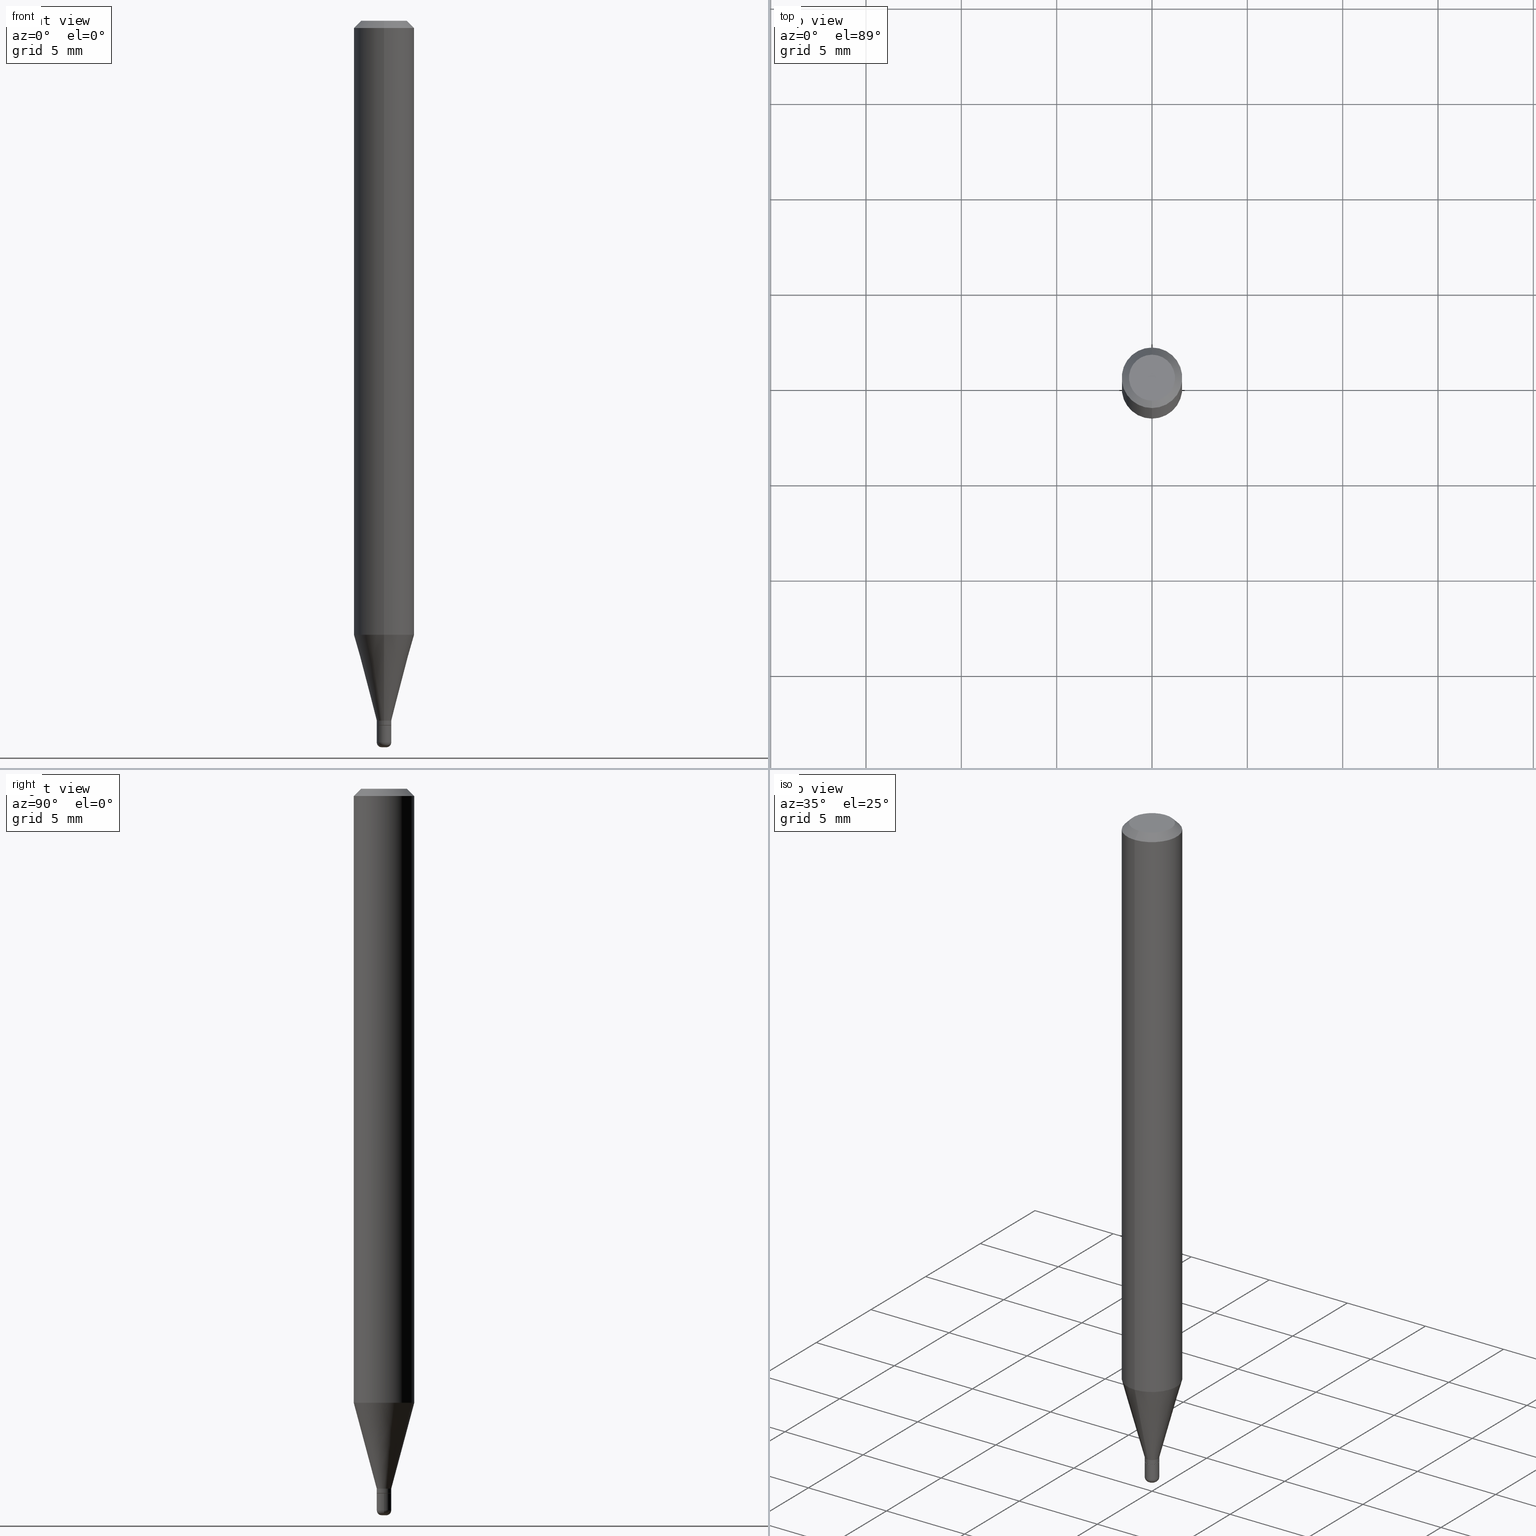
[diagram: canonical four-view strip — front | top / right | iso, engineering-drawing reading convention]
A machine part, canonical four-view strip (front | top / right | iso — engineering-drawing reading convention). The complete STEP part file that produces these views, byte-faithful:
ISO-10303-21;
HEADER;
FILE_DESCRIPTION (( 'STEP AP203' ),
    '1' );
FILE_NAME ('09132.STEP',
    '2024-02-29T22:29:07',
    ( '' ),
    ( '' ),
    'SwSTEP 2.0',
    'SolidWorks 2023',
    '' );
FILE_SCHEMA (( 'CONFIG_CONTROL_DESIGN' ));
ENDSEC;

DATA;
#1 = APPROVAL ( #49, 'UNSPECIFIED' ) ;
#2 = DIRECTION ( 'NONE',  ( -2.445486429573083164E-29, 3.491456101148545241E-15, 1.000000000000000000 ) ) ;
#3 = AXIS2_PLACEMENT_3D ( 'NONE', #233, #388, #23 ) ;
#4 =( NAMED_UNIT ( * ) PLANE_ANGLE_UNIT ( ) SI_UNIT ( $, .RADIAN. ) );
#5 = EDGE_LOOP ( 'NONE', ( #507, #241, #495, #511 ) ) ;
#6 = CARTESIAN_POINT ( 'NONE',  ( -6.680667879903571432E-45, 9.538085489645678336E-31, 2.731836005759327790E-16 ) ) ;
#7 = ORIENTED_EDGE ( 'NONE', *, *, #211, .T. ) ;
#8 = DATE_AND_TIME ( #304, #10 ) ;
#9 = VECTOR ( 'NONE', #149, 39.37007874015748143 ) ;
#10 = LOCAL_TIME ( 17, 29, 7.000000000000000000, #456 ) ;
#11 = EDGE_LOOP ( 'NONE', ( #56, #232 ) ) ;
#12 = DIRECTION ( 'NONE',  ( -2.445468806185136597E-29, 3.491481338843145583E-15, 1.000000000000000000 ) ) ;
#13 = ORIENTED_EDGE ( 'NONE', *, *, #17, .T. ) ;
#14 = PERSON_AND_ORGANIZATION_ROLE ( 'classification_officer' ) ;
#15 = DIRECTION ( 'NONE',  ( -1.807323732225323828E-15, -0.2588190451025172978, 0.9659258262890690894 ) ) ;
#16 = CC_DESIGN_PERSON_AND_ORGANIZATION_ASSIGNMENT ( #177, #483, ( #108 ) ) ;
#17 = EDGE_CURVE ( 'NONE', #147, #447, #27, .T. ) ;
#18 = EDGE_LOOP ( 'NONE', ( #504, #229, #51, #150 ) ) ;
#19 = DIRECTION ( 'NONE',  ( -2.445486429573083164E-29, 3.491456101148545241E-15, 1.000000000000000000 ) ) ;
#20 = ORIENTED_EDGE ( 'NONE', *, *, #252, .F. ) ;
#21 = CIRCLE ( 'NONE', #243, 0.01500000000000004281 ) ;
#22 = PLANE ( 'NONE',  #287 ) ;
#23 = DIRECTION ( 'NONE',  ( -6.982962677686265922E-15, -1.000000000000000000, 4.370956789862821150E-15 ) ) ;
#24 = EDGE_LOOP ( 'NONE', ( #26, #219 ) ) ;
#25 = CARTESIAN_POINT ( 'NONE',  ( 3.558182755028836386E-29, -5.080068627171133732E-15, -1.455000000000000293 ) ) ;
#26 = ORIENTED_EDGE ( 'NONE', *, *, #510, .T. ) ;
#27 = CIRCLE ( 'NONE', #487, 0.01450000000000004410 ) ;
#28 = CIRCLE ( 'NONE', #206, 0.06250000000000000000 ) ;
#29 = APPROVAL ( #136, 'UNSPECIFIED' ) ;
#30 = LINE ( 'NONE', #397, #500 ) ;
#31 = ORIENTED_EDGE ( 'NONE', *, *, #291, .T. ) ;
#32 = CARTESIAN_POINT ( 'NONE',  ( -4.287811248607203282E-16, -0.06250000000000005551, -0.01499999999999948597 ) ) ;
#33 = EDGE_CURVE ( 'NONE', #345, #357, #115, .T. ) ;
#34 = CARTESIAN_POINT ( 'NONE',  ( 3.840629472727447874E-16, 0.04750000000000000749, 1.073394357713768884E-16 ) ) ;
#35 = DIRECTION ( 'NONE',  ( -6.982962677686265922E-15, -1.000000000000000000, 3.483106191921935554E-15 ) ) ;
#36 = DIRECTION ( 'NONE',  ( -2.445468806185136597E-29, 3.491481338843145583E-15, 1.000000000000000000 ) ) ;
#37 = VECTOR ( 'NONE', #201, 39.37007874015748143 ) ;
#38 = AXIS2_PLACEMENT_3D ( 'NONE', #465, #113, #509 ) ;
#39 = DIRECTION ( 'NONE',  ( -2.445486429573083164E-29, 3.491456101148545241E-15, 1.000000000000000000 ) ) ;
#40 = EDGE_CURVE ( 'NONE', #395, #95, #434, .T. ) ;
#41 = CARTESIAN_POINT ( 'NONE',  ( 0.000000000000000000, 0.000000000000000000, 0.000000000000000000 ) ) ;
#42 = FACE_OUTER_BOUND ( 'NONE', #322, .T. ) ;
#43 = DIRECTION ( 'NONE',  ( -2.445486429573083164E-29, 3.491456101148545241E-15, 1.000000000000000000 ) ) ;
#44 = CARTESIAN_POINT ( 'NONE',  ( 3.668229644359552001E-31, -5.237184151722713929E-17, -0.01499999999999970281 ) ) ;
#45 = EDGE_CURVE ( 'NONE', #340, #357, #302, .T. ) ;
#46 = TOROIDAL_SURFACE ( 'NONE', #346, 0.005000000000000000104, 0.01000000000000008521 ) ;
#47 = VERTEX_POINT ( 'NONE', #196 ) ;
#48 = VERTEX_POINT ( 'NONE', #437 ) ;
#49 = APPROVAL_STATUS ( 'not_yet_approved' ) ;
#50 = EDGE_CURVE ( 'NONE', #345, #372, #77, .T. ) ;
#51 = ORIENTED_EDGE ( 'NONE', *, *, #510, .F. ) ;
#52 = APPLICATION_PROTOCOL_DEFINITION ( 'international standard', 'config_control_design', 1994, #137 ) ;
#53 = ADVANCED_FACE ( 'NONE', ( #476 ), #417, .T. ) ;
#54 = AXIS2_PLACEMENT_3D ( 'NONE', #464, #279, #428 ) ;
#55 = VECTOR ( 'NONE', #512, 39.37007874015748143 ) ;
#56 = ORIENTED_EDGE ( 'NONE', *, *, #94, .F. ) ;
#57 = EDGE_CURVE ( 'NONE', #48, #345, #432, .T. ) ;
#58 = CARTESIAN_POINT ( 'NONE',  ( 3.668229644359552001E-31, -5.237184151722713929E-17, -0.01499999999999970281 ) ) ;
#59 = ORIENTED_EDGE ( 'NONE', *, *, #450, .F. ) ;
#60 = DIRECTION ( 'NONE',  ( 0.000000000000000000, 0.000000000000000000, 1.000000000000000000 ) ) ;
#61 = CARTESIAN_POINT ( 'NONE',  ( 3.643748521215853910E-29, -5.202307194876288105E-15, -1.490000000000000213 ) ) ;
#62 = ORIENTED_EDGE ( 'NONE', *, *, #40, .F. ) ;
#63 = CARTESIAN_POINT ( 'NONE',  ( 3.556960011814050937E-29, -5.078322899120560827E-15, -1.454500000000000570 ) ) ;
#64 = ADVANCED_FACE ( 'NONE', ( #81 ), #249, .T. ) ;
#65 = ORIENTED_EDGE ( 'NONE', *, *, #301, .F. ) ;
#66 = TOROIDAL_SURFACE ( 'NONE', #360, 0.005000000000000000104, 0.01000000000000008521 ) ;
#67 = AXIS2_PLACEMENT_3D ( 'NONE', #70, #350, #468 ) ;
#68 = DIRECTION ( 'NONE',  ( 1.839019923739594004E-15, 0.2588190451025240701, 0.9659258262890673130 ) ) ;
#69 = DIRECTION ( 'NONE',  ( -2.445468806185136597E-29, 3.491481338843145583E-15, 1.000000000000000000 ) ) ;
#70 = CARTESIAN_POINT ( 'NONE',  ( 3.556960011814050937E-29, -5.078322899120560827E-15, -1.454500000000000570 ) ) ;
#71 = ORIENTED_EDGE ( 'NONE', *, *, #170, .F. ) ;
#72 = ADVANCED_FACE ( 'NONE', ( #121 ), #295, .T. ) ;
#73 = DIRECTION ( 'NONE',  ( 2.438088387897960049E-29, -3.491481338843145188E-15, -1.000000000000000000 ) ) ;
#74 = CARTESIAN_POINT ( 'NONE',  ( -1.012529588264155786E-16, -0.01450000000000512337, -1.455000000000000293 ) ) ;
#75 = DIRECTION ( 'NONE',  ( -6.982962677686266711E-15, -1.000000000000000000, 3.491456101148545241E-15 ) ) ;
#76 = CARTESIAN_POINT ( 'NONE',  ( -0.01500000000000008618, -5.034624861082517202E-15, -1.490000000000000213 ) ) ;
#77 = LINE ( 'NONE', #114, #122 ) ;
#78 = DIRECTION ( 'NONE',  ( 1.000000000000000000, -6.982962677686273021E-15, 0.000000000000000000 ) ) ;
#79 = AXIS2_PLACEMENT_3D ( 'NONE', #442, #85, #293 ) ;
#80 = ORIENTED_EDGE ( 'NONE', *, *, #454, .T. ) ;
#81 = FACE_OUTER_BOUND ( 'NONE', #272, .T. ) ;
#82 = EDGE_CURVE ( 'NONE', #334, #466, #353, .T. ) ;
#83 = LENGTH_MEASURE_WITH_UNIT ( LENGTH_MEASURE( 0.02539999999999999897 ), #472 );
#84 = CC_DESIGN_DATE_AND_TIME_ASSIGNMENT ( #185, #258, ( #470 ) ) ;
#85 = DIRECTION ( 'NONE',  ( -2.445468806185136597E-29, 3.491481338843145583E-15, 1.000000000000000000 ) ) ;
#86 = CALENDAR_DATE ( 2024, 29, 2 ) ;
#87 = FACE_OUTER_BOUND ( 'NONE', #516, .T. ) ;
#88 = VECTOR ( 'NONE', #352, 39.37007874015748143 ) ;
#89 = ORIENTED_EDGE ( 'NONE', *, *, #57, .T. ) ;
#90 = CALENDAR_DATE ( 2024, 29, 2 ) ;
#91 = CARTESIAN_POINT ( 'NONE',  ( -1.047444401652589802E-16, -0.01500000000000509086, -1.445000000000000284 ) ) ;
#92 = DIRECTION ( 'NONE',  ( -6.982962677686265922E-15, -1.000000000000000000, 3.491456101148545241E-15 ) ) ;
#93 = EDGE_CURVE ( 'NONE', #447, #423, #120, .T. ) ;
#94 = EDGE_CURVE ( 'NONE', #48, #340, #186, .T. ) ;
#95 = VERTEX_POINT ( 'NONE', #34 ) ;
#96 = PERSON_AND_ORGANIZATION ( #280, #305 ) ;
#97 = CARTESIAN_POINT ( 'NONE',  ( 1.048050535246506404E-16, 0.01449999999999496310, -1.455000000000000293 ) ) ;
#98 = COORDINATED_UNIVERSAL_TIME_OFFSET ( 5, 0, .BEHIND. ) ;
#99 = DIRECTION ( 'NONE',  ( 1.000000000000000000, -6.982962677686266711E-15, 4.876176775795935793E-29 ) ) ;
#100 = ADVANCED_FACE ( 'NONE', ( #42 ), #318, .T. ) ;
#101 = EDGE_LOOP ( 'NONE', ( #7, #31, #161, #257 ) ) ;
#102 = DIRECTION ( 'NONE',  ( -2.445486429573083164E-29, 3.491456101148545241E-15, 1.000000000000000000 ) ) ;
#103 = AXIS2_PLACEMENT_3D ( 'NONE', #298, #471, #205 ) ;
#104 = AXIS2_PLACEMENT_3D ( 'NONE', #494, #12, #183 ) ;
#105 = LINE ( 'NONE', #74, #441 ) ;
#106 = DESIGN_CONTEXT ( 'detailed design', #137, 'design' ) ;
#107 = ORIENTED_EDGE ( 'NONE', *, *, #33, .F. ) ;
#108 = PRODUCT ( '09132', '09132', '', ( #220 ) ) ;
#109 = DIRECTION ( 'NONE',  ( -2.445468806185136597E-29, 3.491481338843145583E-15, 1.000000000000000000 ) ) ;
#110 = ORIENTED_EDGE ( 'NONE', *, *, #247, .T. ) ;
#111 = ADVANCED_FACE ( 'NONE', ( #210 ), #66, .T. ) ;
#112 = ADVANCED_FACE ( 'NONE', ( #326 ), #224, .T. ) ;
#113 = DIRECTION ( 'NONE',  ( -2.445486429573083164E-29, 3.491456101148545241E-15, 1.000000000000000000 ) ) ;
#114 = CARTESIAN_POINT ( 'NONE',  ( 0.01500000000000004281, -1.047444401652942940E-16, 7.314265163693924534E-31 ) ) ;
#115 = CIRCLE ( 'NONE', #143, 0.01500000000000008618 ) ;
#116 = AXIS2_PLACEMENT_3D ( 'NONE', #58, #19, #299 ) ;
#117 = DIRECTION ( 'NONE',  ( -4.937700262166391610E-15, -0.7071067811868091413, 0.7071067811862858932 ) ) ;
#118 = LINE ( 'NONE', #204, #478 ) ;
#119 = EDGE_CURVE ( 'NONE', #357, #259, #118, .T. ) ;
#120 = LINE ( 'NONE', #405, #164 ) ;
#121 = FACE_OUTER_BOUND ( 'NONE', #270, .T. ) ;
#122 = VECTOR ( 'NONE', #330, 39.37007874015748143 ) ;
#123 = CONICAL_SURFACE ( 'NONE', #419, 0.06250000000000000000, 0.7853981633974488341 ) ;
#124 = LOCAL_TIME ( 17, 29, 7.000000000000000000, #98 ) ;
#125 = ADVANCED_FACE ( 'NONE', ( #515 ), #167, .F. ) ;
#126 = DIRECTION ( 'NONE',  ( -6.982962677686265922E-15, -1.000000000000000000, 4.370956789862821150E-15 ) ) ;
#127 = APPROVAL_DATE_TIME ( #178, #315 ) ;
#128 = VERTEX_POINT ( 'NONE', #518 ) ;
#129 = CARTESIAN_POINT ( 'NONE',  ( -1.047444401652589802E-16, -0.01500000000000509086, -1.445000000000000284 ) ) ;
#130 = CIRCLE ( 'NONE', #104, 0.01500000000000008618 ) ;
#131 = EDGE_LOOP ( 'NONE', ( #303, #146, #414, #459 ) ) ;
#132 = PERSON_AND_ORGANIZATION ( #280, #305 ) ;
#133 = EDGE_CURVE ( 'NONE', #95, #461, #169, .T. ) ;
#134 = ORIENTED_EDGE ( 'NONE', *, *, #50, .T. ) ;
#135 = ORIENTED_EDGE ( 'NONE', *, *, #82, .F. ) ;
#136 = APPROVAL_STATUS ( 'not_yet_approved' ) ;
#137 = APPLICATION_CONTEXT ( 'configuration controlled 3d designs of mechanical parts and assemblies' ) ;
#138 = ORIENTED_EDGE ( 'NONE', *, *, #497, .F. ) ;
#139 = ORIENTED_EDGE ( 'NONE', *, *, #312, .T. ) ;
#140 = COORDINATED_UNIVERSAL_TIME_OFFSET ( 5, 0, .BEHIND. ) ;
#141 = DIRECTION ( 'NONE',  ( -2.445486429573083164E-29, 3.491456101148545241E-15, 1.000000000000000000 ) ) ;
#142 = AXIS2_PLACEMENT_3D ( 'NONE', #286, #402, #480 ) ;
#143 = AXIS2_PLACEMENT_3D ( 'NONE', #502, #69, #237 ) ;
#144 = CIRCLE ( 'NONE', #79, 0.005000000000000001839 ) ;
#145 = ADVANCED_FACE ( 'NONE', ( #159 ), #263, .T. ) ;
#146 = ORIENTED_EDGE ( 'NONE', *, *, #301, .T. ) ;
#147 = VERTEX_POINT ( 'NONE', #433 ) ;
#148 = EDGE_CURVE ( 'NONE', #423, #261, #179, .T. ) ;
#149 = DIRECTION ( 'NONE',  ( -2.445486429573082884E-29, 3.491456101148545241E-15, 1.000000000000000000 ) ) ;
#150 = ORIENTED_EDGE ( 'NONE', *, *, #50, .F. ) ;
#151 = DIRECTION ( 'NONE',  ( -1.000000000000000000, 6.982962677686265922E-15, -4.876176775795935793E-29 ) ) ;
#152 = DIRECTION ( 'NONE',  ( -2.445486429573083164E-29, 3.491456101148545241E-15, 1.000000000000000000 ) ) ;
#153 = AXIS2_PLACEMENT_3D ( 'NONE', #208, #440, #289 ) ;
#154 = AXIS2_PLACEMENT_3D ( 'NONE', #316, #427, #190 ) ;
#155 = CYLINDRICAL_SURFACE ( 'NONE', #354, 0.01500000000000004281 ) ;
#156 = CC_DESIGN_PERSON_AND_ORGANIZATION_ASSIGNMENT ( #132, #262, ( #215 ) ) ;
#157 = DIRECTION ( 'NONE',  ( -6.982962677686265922E-15, -1.000000000000000000, 0.000000000000000000 ) ) ;
#158 = DIMENSIONAL_EXPONENTS ( 1.000000000000000000, 0.000000000000000000, 0.000000000000000000, 0.000000000000000000, 0.000000000000000000, 0.000000000000000000, 0.000000000000000000 ) ;
#159 = FACE_OUTER_BOUND ( 'NONE', #5, .T. ) ;
#160 = MANIFOLD_SOLID_BREP ( 'Body-Move/Copy2[1]', #242 ) ;
#161 = ORIENTED_EDGE ( 'NONE', *, *, #189, .F. ) ;
#162 = DIRECTION ( 'NONE',  ( -2.445468806185136597E-29, 3.491481338843145583E-15, 1.000000000000000000 ) ) ;
#163 = DIRECTION ( 'NONE',  ( -6.982962677686265922E-15, -1.000000000000000000, 3.491456101148544846E-15 ) ) ;
#164 = VECTOR ( 'NONE', #251, 39.37007874015748143 ) ;
#165 = AXIS2_PLACEMENT_3D ( 'NONE', #41, #209, #367 ) ;
#166 = DIRECTION ( 'NONE',  ( -2.445468806185136597E-29, 3.491481338843145583E-15, 1.000000000000000000 ) ) ;
#167 = PLANE ( 'NONE',  #197 ) ;
#168 = FACE_OUTER_BOUND ( 'NONE', #101, .T. ) ;
#169 = LINE ( 'NONE', #284, #37 ) ;
#170 = EDGE_CURVE ( 'NONE', #147, #261, #105, .T. ) ;
#171 = CARTESIAN_POINT ( 'NONE',  ( 0.000000000000000000, 0.000000000000000000, 0.000000000000000000 ) ) ;
#172 = CIRCLE ( 'NONE', #385, 0.06250000000000000000 ) ;
#173 = EDGE_CURVE ( 'NONE', #259, #372, #394, .T. ) ;
#174 = CARTESIAN_POINT ( 'NONE',  ( 0.000000000000000000, 0.000000000000000000, 0.000000000000000000 ) ) ;
#175 = CARTESIAN_POINT ( 'NONE',  ( 0.01500000000000008618, -5.307051635041583053E-15, -1.490000000000000213 ) ) ;
#176 = ORIENTED_EDGE ( 'NONE', *, *, #17, .F. ) ;
#177 = PERSON_AND_ORGANIZATION ( #280, #305 ) ;
#178 = DATE_AND_TIME ( #226, #124 ) ;
#179 = CIRCLE ( 'NONE', #67, 0.01500000000000004281 ) ;
#180 = CIRCLE ( 'NONE', #469, 0.01499999999999999944 ) ;
#181 = ORIENTED_EDGE ( 'NONE', *, *, #148, .T. ) ;
#182 = COORDINATED_UNIVERSAL_TIME_OFFSET ( 5, 0, .BEHIND. ) ;
#183 = DIRECTION ( 'NONE',  ( 1.000000000000000000, -6.982962677686292743E-15, 0.000000000000000000 ) ) ;
#184 = ORIENTED_EDGE ( 'NONE', *, *, #82, .T. ) ;
#185 = DATE_AND_TIME ( #90, #481 ) ;
#186 = CIRCLE ( 'NONE', #444, 0.005000000000000001839 ) ;
#187 = CIRCLE ( 'NONE', #116, 0.06250000000000000000 ) ;
#188 = ORIENTED_EDGE ( 'NONE', *, *, #133, .F. ) ;
#189 = EDGE_CURVE ( 'NONE', #466, #334, #362, .T. ) ;
#190 = DIRECTION ( 'NONE',  ( -6.982962677686265922E-15, -1.000000000000000000, 0.000000000000000000 ) ) ;
#191 = ORIENTED_EDGE ( 'NONE', *, *, #194, .T. ) ;
#192 = FACE_OUTER_BOUND ( 'NONE', #508, .T. ) ;
#193 = CARTESIAN_POINT ( 'NONE',  ( -6.680667879903571432E-45, 9.538085489645678336E-31, 2.731836005759327790E-16 ) ) ;
#194 = EDGE_CURVE ( 'NONE', #261, #466, #386, .T. ) ;
#195 = CARTESIAN_POINT ( 'NONE',  ( 1.065814103640153321E-16, 0.01500000000000004455, -5.237184151722833491E-17 ) ) ;
#196 = CARTESIAN_POINT ( 'NONE',  ( 4.440892098500932831E-16, 0.06249999999999555911, -1.267727586640479132 ) ) ;
#197 = AXIS2_PLACEMENT_3D ( 'NONE', #328, #439, #365 ) ;
#198 = AXIS2_PLACEMENT_3D ( 'NONE', #463, #278, #238 ) ;
#199 = ORIENTED_EDGE ( 'NONE', *, *, #268, .F. ) ;
#200 = APPROVAL_PERSON_ORGANIZATION ( #260, #1, #300 ) ;
#201 = DIRECTION ( 'NONE',  ( 4.937700262164550409E-15, 0.7071067811865454633, -0.7071067811865495711 ) ) ;
#202 = DIRECTION ( 'NONE',  ( -6.982962677686266711E-15, -1.000000000000000000, 0.000000000000000000 ) ) ;
#203 = EDGE_CURVE ( 'NONE', #128, #451, #393, .T. ) ;
#204 = CARTESIAN_POINT ( 'NONE',  ( -0.01500000000000004281, 1.065814103640153321E-16, -7.378402635382379552E-31 ) ) ;
#205 = DIRECTION ( 'NONE',  ( -6.982962677686265922E-15, -1.000000000000000000, 0.000000000000000000 ) ) ;
#206 = AXIS2_PLACEMENT_3D ( 'NONE', #44, #43, #35 ) ;
#207 = DIRECTION ( 'NONE',  ( -2.445486429573083164E-29, 3.491456101148545241E-15, 1.000000000000000000 ) ) ;
#208 = CARTESIAN_POINT ( 'NONE',  ( 3.533727890733106107E-29, -5.045154066159648808E-15, -1.445000000000000284 ) ) ;
#209 = DIRECTION ( 'NONE',  ( -2.445486429573083164E-29, 3.491456101148545241E-15, 1.000000000000000000 ) ) ;
#210 = FACE_OUTER_BOUND ( 'NONE', #271, .T. ) ;
#211 = EDGE_CURVE ( 'NONE', #261, #423, #21, .T. ) ;
#212 = AXIS2_PLACEMENT_3D ( 'NONE', #436, #474, #78 ) ;
#213 = AXIS2_PLACEMENT_3D ( 'NONE', #307, #256, #223 ) ;
#214 = AXIS2_PLACEMENT_3D ( 'NONE', #25, #102, #426 ) ;
#215 = PRODUCT_DEFINITION_FORMATION_WITH_SPECIFIED_SOURCE ( 'ANY', '', #108, .NOT_KNOWN. ) ;
#216 = EDGE_LOOP ( 'NONE', ( #13, #488, #396, #71 ) ) ;
#217 =( NAMED_UNIT ( * ) SI_UNIT ( $, .STERADIAN. ) SOLID_ANGLE_UNIT ( ) );
#218 = ADVANCED_FACE ( 'NONE', ( #460 ), #22, .F. ) ;
#219 = ORIENTED_EDGE ( 'NONE', *, *, #173, .T. ) ;
#220 = MECHANICAL_CONTEXT ( 'NONE', #227, 'mechanical' ) ;
#221 = ORIENTED_EDGE ( 'NONE', *, *, #45, .F. ) ;
#222 = DATE_TIME_ROLE ( 'creation_date' ) ;
#223 = DIRECTION ( 'NONE',  ( -6.982962677686265922E-15, -1.000000000000000000, 3.491456101148544846E-15 ) ) ;
#224 = CONICAL_SURFACE ( 'NONE', #103, 0.01450000000000004410, 0.7853981633978217580 ) ;
#225 = AXIS2_PLACEMENT_3D ( 'NONE', #503, #162, #356 ) ;
#226 = CALENDAR_DATE ( 2024, 29, 2 ) ;
#227 = APPLICATION_CONTEXT ( 'configuration controlled 3d designs of mechanical parts and assemblies' ) ;
#228 = EDGE_CURVE ( 'NONE', #447, #147, #505, .T. ) ;
#229 = ORIENTED_EDGE ( 'NONE', *, *, #119, .T. ) ;
#230 = ADVANCED_BREP_SHAPE_REPRESENTATION ( '09132', ( #160, #493, #380 ), #264 ) ;
#231 = DIRECTION ( 'NONE',  ( 1.000000000000000000, -6.982962677686292743E-15, 4.883557194083121309E-29 ) ) ;
#232 = ORIENTED_EDGE ( 'NONE', *, *, #321, .F. ) ;
#233 = CARTESIAN_POINT ( 'NONE',  ( 3.100210609524725780E-29, -4.426215216970220777E-15, -1.267727586640478687 ) ) ;
#234 = APPROVAL_PERSON_ORGANIZATION ( #492, #315, #333 ) ;
#235 = EDGE_LOOP ( 'NONE', ( #20, #59, #355, #139 ) ) ;
#236 = CARTESIAN_POINT ( 'NONE',  ( 1.047444401653295709E-16, 0.01499999999999492017, -1.455000000000000293 ) ) ;
#237 = DIRECTION ( 'NONE',  ( 1.000000000000000000, -6.982962677686292743E-15, 0.000000000000000000 ) ) ;
#238 = DIRECTION ( 'NONE',  ( 6.982962677686265922E-15, 1.000000000000000000, -3.491456101148545241E-15 ) ) ;
#239 = ORIENTED_EDGE ( 'NONE', *, *, #57, .F. ) ;
#240 = CARTESIAN_POINT ( 'NONE',  ( -1.047444401652590788E-16, -0.01500000000000517066, -1.454500000000000570 ) ) ;
#241 = ORIENTED_EDGE ( 'NONE', *, *, #228, .T. ) ;
#242 = CLOSED_SHELL ( 'NONE', ( #475, #294, #218, #244, #111, #125 ) ) ;
#243 = AXIS2_PLACEMENT_3D ( 'NONE', #63, #323, #202 ) ;
#244 = ADVANCED_FACE ( 'NONE', ( #245 ), #431, .T. ) ;
#245 = FACE_OUTER_BOUND ( 'NONE', #276, .T. ) ;
#246 = CARTESIAN_POINT ( 'NONE',  ( 3.668203209277706016E-29, -5.237222008264719754E-15, -1.500000000000000444 ) ) ;
#247 = EDGE_CURVE ( 'NONE', #334, #47, #30, .T. ) ;
#248 = DIRECTION ( 'NONE',  ( -2.445468806185136597E-29, 3.491481338843145583E-15, 1.000000000000000000 ) ) ;
#249 = CYLINDRICAL_SURFACE ( 'NONE', #498, 0.06250000000000000000 ) ;
#250 = CYLINDRICAL_SURFACE ( 'NONE', #165, 0.01500000000000004455 ) ;
#251 = DIRECTION ( 'NONE',  ( 5.024295867789938301E-15, 0.7071067811868140263, 0.7071067811862810082 ) ) ;
#252 = EDGE_CURVE ( 'NONE', #395, #451, #273, .T. ) ;
#253 =( CONVERSION_BASED_UNIT ( 'INCH', #83 ) LENGTH_UNIT ( ) NAMED_UNIT ( #158 ) );
#254 = DIRECTION ( 'NONE',  ( -2.445486429573082884E-29, 3.491456101148545241E-15, 1.000000000000000000 ) ) ;
#255 = AXIS2_PLACEMENT_3D ( 'NONE', #339, #141, #383 ) ;
#256 = DIRECTION ( 'NONE',  ( -2.445486429573083164E-29, 3.491456101148545241E-15, 1.000000000000000000 ) ) ;
#257 = ORIENTED_EDGE ( 'NONE', *, *, #194, .F. ) ;
#258 = DATE_TIME_ROLE ( 'classification_date' ) ;
#259 = VERTEX_POINT ( 'NONE', #348 ) ;
#260 = PERSON_AND_ORGANIZATION ( #280, #305 ) ;
#261 = VERTEX_POINT ( 'NONE', #240 ) ;
#262 = PERSON_AND_ORGANIZATION_ROLE ( 'design_supplier' ) ;
#263 = CONICAL_SURFACE ( 'NONE', #214, 0.01450000000000004410, 0.7853981633978217580 ) ;
#264 =( GEOMETRIC_REPRESENTATION_CONTEXT ( 3 ) GLOBAL_UNCERTAINTY_ASSIGNED_CONTEXT ( ( #364 ) ) GLOBAL_UNIT_ASSIGNED_CONTEXT ( ( #253, #4, #217 ) ) REPRESENTATION_CONTEXT ( 'NONE', 'WORKASPACE' ) );
#265 = CC_DESIGN_APPROVAL ( #1, ( #470 ) ) ;
#266 = ORIENTED_EDGE ( 'NONE', *, *, #40, .T. ) ;
#267 = CC_DESIGN_PERSON_AND_ORGANIZATION_ASSIGNMENT ( #341, #489, ( #215 ) ) ;
#268 = EDGE_CURVE ( 'NONE', #128, #47, #332, .T. ) ;
#269 = DIRECTION ( 'NONE',  ( -2.445468806185136597E-29, 3.491481338843145583E-15, 1.000000000000000000 ) ) ;
#270 = EDGE_LOOP ( 'NONE', ( #375, #181, #191, #135 ) ) ;
#271 = EDGE_LOOP ( 'NONE', ( #221, #370, #89, #347 ) ) ;
#272 = EDGE_LOOP ( 'NONE', ( #484, #390, #138, #455 ) ) ;
#273 = LINE ( 'NONE', #32, #55 ) ;
#274 = AXIS2_PLACEMENT_3D ( 'NONE', #331, #400, #513 ) ;
#275 = LOCAL_TIME ( 17, 29, 7.000000000000000000, #140 ) ;
#276 = EDGE_LOOP ( 'NONE', ( #306, #80, #134, #413 ) ) ;
#277 = ORIENTED_EDGE ( 'NONE', *, *, #228, .F. ) ;
#278 = DIRECTION ( 'NONE',  ( 2.445486429573082884E-29, -3.491456101148545241E-15, -1.000000000000000000 ) ) ;
#279 = DIRECTION ( 'NONE',  ( 7.105427357601001859E-15, 1.000000000000000000, -3.491481338843145583E-15 ) ) ;
#280 = PERSON ( 'UNSPECIFIED', 'UNSPECIFIED', 'UNSPECIFIED', ('UNSPECIFIED'), ('UNSPECIFIED'), ('UNSPECIFIED') ) ;
#281 = CARTESIAN_POINT ( 'NONE',  ( 0.000000000000000000, 0.000000000000000000, 0.000000000000000000 ) ) ;
#282 = ORIENTED_EDGE ( 'NONE', *, *, #94, .T. ) ;
#283 = ADVANCED_FACE ( 'NONE', ( #192 ), #317, .F. ) ;
#284 = CARTESIAN_POINT ( 'NONE',  ( 4.364351673553919652E-16, 0.06249999999999995143, -0.01499999999999992138 ) ) ;
#285 = PRODUCT_DEFINITION_SHAPE ( 'NONE', 'NONE',  #391 ) ;
#286 = CARTESIAN_POINT ( 'NONE',  ( 3.668229644359552001E-31, -5.237184151722713929E-17, -0.01499999999999970281 ) ) ;
#287 = AXIS2_PLACEMENT_3D ( 'NONE', #236, #73, #151 ) ;
#288 = CARTESIAN_POINT ( 'NONE',  ( -4.364351673553916201E-16, -0.06250000000000000000, 2.182160063217840529E-16 ) ) ;
#289 = DIRECTION ( 'NONE',  ( -6.982962677686266711E-15, -1.000000000000000000, 0.000000000000000000 ) ) ;
#290 = DIRECTION ( 'NONE',  ( 6.982962677686265922E-15, 1.000000000000000000, -3.483106191921935554E-15 ) ) ;
#291 = EDGE_CURVE ( 'NONE', #423, #334, #389, .T. ) ;
#292 = DIRECTION ( 'NONE',  ( 1.000000000000000000, -6.982962677686292743E-15, 4.883557194083121309E-29 ) ) ;
#293 = DIRECTION ( 'NONE',  ( 1.000000000000000000, -6.982962677686329819E-15, 0.000000000000000000 ) ) ;
#294 = ADVANCED_FACE ( 'NONE', ( #506 ), #155, .T. ) ;
#295 = CYLINDRICAL_SURFACE ( 'NONE', #384, 0.01500000000000004455 ) ;
#296 = AXIS2_PLACEMENT_3D ( 'NONE', #193, #152, #319 ) ;
#297 = AXIS2_PLACEMENT_3D ( 'NONE', #281, #358, #467 ) ;
#298 = CARTESIAN_POINT ( 'NONE',  ( 3.558182755028836386E-29, -5.080068627171133732E-15, -1.455000000000000293 ) ) ;
#299 = DIRECTION ( 'NONE',  ( -6.982962677686265922E-15, -1.000000000000000000, 3.483106191921935554E-15 ) ) ;
#300 = APPROVAL_ROLE ( '' ) ;
#301 = EDGE_CURVE ( 'NONE', #47, #128, #172, .T. ) ;
#302 = CIRCLE ( 'NONE', #54, 0.01000000000000008521 ) ;
#303 = ORIENTED_EDGE ( 'NONE', *, *, #329, .F. ) ;
#304 = CALENDAR_DATE ( 2024, 29, 2 ) ;
#305 = ORGANIZATION ( 'UNSPECIFIED', 'UNSPECIFIED', '' ) ;
#306 = ORIENTED_EDGE ( 'NONE', *, *, #119, .F. ) ;
#307 = CARTESIAN_POINT ( 'NONE',  ( 0.000000000000000000, 0.000000000000000000, 0.000000000000000000 ) ) ;
#308 = CC_DESIGN_PERSON_AND_ORGANIZATION_ASSIGNMENT ( #369, #343, ( #391 ) ) ;
#309 = ORIENTED_EDGE ( 'NONE', *, *, #497, .T. ) ;
#310 = APPLICATION_PROTOCOL_DEFINITION ( 'international standard', 'config_control_design', 1994, #227 ) ;
#311 = VECTOR ( 'NONE', #15, 39.37007874015748854 ) ;
#312 = EDGE_CURVE ( 'NONE', #461, #451, #28, .T. ) ;
#313 = ORIENTED_EDGE ( 'NONE', *, *, #399, .T. ) ;
#314 = EDGE_LOOP ( 'NONE', ( #62, #424, #309, #188 ) ) ;
#315 = APPROVAL ( #452, 'UNSPECIFIED' ) ;
#316 = CARTESIAN_POINT ( 'NONE',  ( 3.558182755028836386E-29, -5.080068627171133732E-15, -1.455000000000000293 ) ) ;
#317 = PLANE ( 'NONE',  #198 ) ;
#318 = CONICAL_SURFACE ( 'NONE', #274, 0.01500000000000004455, 0.2617993877991494078 ) ;
#319 = DIRECTION ( 'NONE',  ( -6.982962677686265133E-15, -1.000000000000000000, 3.491456101148544846E-15 ) ) ;
#320 = CARTESIAN_POINT ( 'NONE',  ( 0.000000000000000000, 0.000000000000000000, 0.000000000000000000 ) ) ;
#321 = EDGE_CURVE ( 'NONE', #340, #48, #144, .T. ) ;
#322 = EDGE_LOOP ( 'NONE', ( #382, #110, #199, #418 ) ) ;
#323 = DIRECTION ( 'NONE',  ( -2.445486429573083164E-29, 3.491456101148545241E-15, 1.000000000000000000 ) ) ;
#324 = ORIENTED_EDGE ( 'NONE', *, *, #247, .F. ) ;
#325 = DIRECTION ( 'NONE',  ( -2.445486429573082884E-29, 3.491456101148545241E-15, 1.000000000000000000 ) ) ;
#326 = FACE_OUTER_BOUND ( 'NONE', #216, .T. ) ;
#327 = CC_DESIGN_SECURITY_CLASSIFICATION ( #470, ( #215 ) ) ;
#328 = CARTESIAN_POINT ( 'NONE',  ( 3.582686580359767159E-29, -5.359686688179454114E-15, -1.500000000000000444 ) ) ;
#329 = EDGE_CURVE ( 'NONE', #47, #461, #514, .T. ) ;
#330 = DIRECTION ( 'NONE',  ( -2.445468806185136877E-29, 3.491481338843145188E-15, 1.000000000000000000 ) ) ;
#331 = CARTESIAN_POINT ( 'NONE',  ( 3.533727890733106107E-29, -5.045154066159648808E-15, -1.445000000000000284 ) ) ;
#332 = CIRCLE ( 'NONE', #3, 0.06250000000000000000 ) ;
#333 = APPROVAL_ROLE ( '' ) ;
#334 = VERTEX_POINT ( 'NONE', #408 ) ;
#335 = APPROVAL_DATE_TIME ( #411, #1 ) ;
#336 = CARTESIAN_POINT ( 'NONE',  ( -4.364351673553912750E-16, -0.06250000000000005551, -0.01499999999999948597 ) ) ;
#337 = EDGE_LOOP ( 'NONE', ( #324, #184, #313, #65 ) ) ;
#338 = APPROVAL_DATE_TIME ( #420, #29 ) ;
#339 = CARTESIAN_POINT ( 'NONE',  ( 3.533727890733106107E-29, -5.045154066159648808E-15, -1.445000000000000284 ) ) ;
#340 = VERTEX_POINT ( 'NONE', #517 ) ;
#341 = PERSON_AND_ORGANIZATION ( #280, #305 ) ;
#342 = FACE_OUTER_BOUND ( 'NONE', #491, .T. ) ;
#343 = PERSON_AND_ORGANIZATION_ROLE ( 'creator' ) ;
#344 = CARTESIAN_POINT ( 'NONE',  ( 4.440892098500937762E-16, 0.06249999999999993755, -0.01499999999999992138 ) ) ;
#345 = VERTEX_POINT ( 'NONE', #175 ) ;
#346 = AXIS2_PLACEMENT_3D ( 'NONE', #61, #269, #231 ) ;
#347 = ORIENTED_EDGE ( 'NONE', *, *, #454, .F. ) ;
#348 = CARTESIAN_POINT ( 'NONE',  ( -0.01499999999999999944, -5.034624861082517202E-15, -1.455000000000000293 ) ) ;
#349 = DIRECTION ( 'NONE',  ( -2.445486429573083164E-29, 3.491456101148545241E-15, 1.000000000000000000 ) ) ;
#350 = DIRECTION ( 'NONE',  ( -2.445486429573083164E-29, 3.491456101148545241E-15, 1.000000000000000000 ) ) ;
#351 = ORIENTED_EDGE ( 'NONE', *, *, #45, .T. ) ;
#352 = DIRECTION ( 'NONE',  ( -2.445486429573082884E-29, 3.491456101148545241E-15, 1.000000000000000000 ) ) ;
#353 = CIRCLE ( 'NONE', #153, 0.01500000000000004455 ) ;
#354 = AXIS2_PLACEMENT_3D ( 'NONE', #320, #109, #99 ) ;
#355 = ORIENTED_EDGE ( 'NONE', *, *, #133, .T. ) ;
#356 = DIRECTION ( 'NONE',  ( 1.000000000000000000, -6.982962677686268288E-15, 0.000000000000000000 ) ) ;
#357 = VERTEX_POINT ( 'NONE', #76 ) ;
#358 = DIRECTION ( 'NONE',  ( -2.445468806185136597E-29, 3.491481338843145583E-15, 1.000000000000000000 ) ) ;
#359 = CARTESIAN_POINT ( 'NONE',  ( 3.643748521215853910E-29, -5.202307194876288105E-15, -1.490000000000000213 ) ) ;
#360 = AXIS2_PLACEMENT_3D ( 'NONE', #359, #36, #292 ) ;
#361 = DIRECTION ( 'NONE',  ( -2.445468806185136877E-29, 3.491481338843145188E-15, 1.000000000000000000 ) ) ;
#362 = CIRCLE ( 'NONE', #38, 0.01500000000000004455 ) ;
#363 = CARTESIAN_POINT ( 'NONE',  ( 4.440892098500625669E-16, 0.06250000000000000000, -2.182160063217840529E-16 ) ) ;
#364 = UNCERTAINTY_MEASURE_WITH_UNIT (LENGTH_MEASURE( 1.000000000000000082E-05 ), #253, 'distance_accuracy_value', 'NONE');
#365 = DIRECTION ( 'NONE',  ( 1.000000000000000000, -6.982962677686265922E-15, 4.876176775795935793E-29 ) ) ;
#366 = CARTESIAN_POINT ( 'NONE',  ( 3.558157112999374623E-29, -5.080105348016777334E-15, -1.455000000000000293 ) ) ;
#367 = DIRECTION ( 'NONE',  ( -6.982962677686266711E-15, -1.000000000000000000, 3.491456101148545241E-15 ) ) ;
#368 = CARTESIAN_POINT ( 'NONE',  ( 0.000000000000000000, 0.000000000000000000, 0.000000000000000000 ) ) ;
#369 = PERSON_AND_ORGANIZATION ( #280, #305 ) ;
#370 = ORIENTED_EDGE ( 'NONE', *, *, #321, .T. ) ;
#371 = ADVANCED_FACE ( 'NONE', ( #473 ), #123, .T. ) ;
#372 = VERTEX_POINT ( 'NONE', #438 ) ;
#373 = DIRECTION ( 'NONE',  ( 1.000000000000000000, 0.000000000000000000, 0.000000000000000000 ) ) ;
#374 = PLANE ( 'NONE',  #499 ) ;
#375 = ORIENTED_EDGE ( 'NONE', *, *, #291, .F. ) ;
#376 = PERSON_AND_ORGANIZATION ( #280, #305 ) ;
#377 = CLOSED_SHELL ( 'NONE', ( #392, #112, #53, #64, #100, #406, #430, #371, #283, #429, #145, #72 ) ) ;
#378 = ORIENTED_EDGE ( 'NONE', *, *, #450, .T. ) ;
#379 = APPROVAL_ROLE ( '' ) ;
#380 = AXIS2_PLACEMENT_3D ( 'NONE', #174, #60, #373 ) ;
#381 = DIRECTION ( 'NONE',  ( -2.445486429573083164E-29, 3.491456101148545241E-15, 1.000000000000000000 ) ) ;
#382 = ORIENTED_EDGE ( 'NONE', *, *, #189, .T. ) ;
#383 = DIRECTION ( 'NONE',  ( -6.982962677686266711E-15, -1.000000000000000000, 0.000000000000000000 ) ) ;
#384 = AXIS2_PLACEMENT_3D ( 'NONE', #171, #39, #75 ) ;
#385 = AXIS2_PLACEMENT_3D ( 'NONE', #482, #207, #126 ) ;
#386 = LINE ( 'NONE', #501, #409 ) ;
#387 = CARTESIAN_POINT ( 'NONE',  ( 3.558182755028836386E-29, -5.080068627171133732E-15, -1.455000000000000293 ) ) ;
#388 = DIRECTION ( 'NONE',  ( -2.445486429573083164E-29, 3.491456101148545241E-15, 1.000000000000000000 ) ) ;
#389 = LINE ( 'NONE', #195, #88 ) ;
#390 = ORIENTED_EDGE ( 'NONE', *, *, #329, .T. ) ;
#391 = PRODUCT_DEFINITION ( 'UNKNOWN', '', #215, #106 ) ;
#392 = ADVANCED_FACE ( 'NONE', ( #168 ), #250, .T. ) ;
#393 = LINE ( 'NONE', #288, #9 ) ;
#394 = CIRCLE ( 'NONE', #225, 0.01499999999999999944 ) ;
#395 = VERTEX_POINT ( 'NONE', #477 ) ;
#396 = ORIENTED_EDGE ( 'NONE', *, *, #211, .F. ) ;
#397 = CARTESIAN_POINT ( 'NONE',  ( 1.065814103640506706E-16, 0.01499999999999499997, -1.445000000000000284 ) ) ;
#398 = DIRECTION ( 'NONE',  ( 1.000000000000000000, -6.982962677686329819E-15, 0.000000000000000000 ) ) ;
#399 = EDGE_CURVE ( 'NONE', #466, #128, #443, .T. ) ;
#400 = DIRECTION ( 'NONE',  ( -2.445486429573083164E-29, 3.491456101148545241E-15, 1.000000000000000000 ) ) ;
#401 = DIRECTION ( 'NONE',  ( 2.445486429573083164E-29, -3.491456101148545241E-15, -1.000000000000000000 ) ) ;
#402 = DIRECTION ( 'NONE',  ( 2.445486429573083164E-29, -3.491456101148545241E-15, -1.000000000000000000 ) ) ;
#403 = AXIS2_PLACEMENT_3D ( 'NONE', #6, #381, #412 ) ;
#404 = CARTESIAN_POINT ( 'NONE',  ( 3.668229644359552001E-31, -5.237184151722713929E-17, -0.01499999999999970281 ) ) ;
#405 = CARTESIAN_POINT ( 'NONE',  ( 1.030286966852504007E-16, 0.01449999999999496310, -1.455000000000000293 ) ) ;
#406 = ADVANCED_FACE ( 'NONE', ( #449 ), #445, .T. ) ;
#407 = DIRECTION ( 'NONE',  ( 1.000000000000000000, -6.982962677686268288E-15, 0.000000000000000000 ) ) ;
#408 = CARTESIAN_POINT ( 'NONE',  ( 2.753353101070722973E-16, 0.01499999999999500171, -1.445000000000000284 ) ) ;
#409 = VECTOR ( 'NONE', #325, 39.37007874015748143 ) ;
#410 = LOCAL_TIME ( 17, 29, 7.000000000000000000, #496 ) ;
#411 = DATE_AND_TIME ( #448, #410 ) ;
#412 = DIRECTION ( 'NONE',  ( -6.982962677686265133E-15, -1.000000000000000000, 3.491456101148544846E-15 ) ) ;
#413 = ORIENTED_EDGE ( 'NONE', *, *, #173, .F. ) ;
#414 = ORIENTED_EDGE ( 'NONE', *, *, #203, .T. ) ;
#415 = SHAPE_DEFINITION_REPRESENTATION ( #285, #230 ) ;
#416 = FACE_OUTER_BOUND ( 'NONE', #131, .T. ) ;
#417 = CONICAL_SURFACE ( 'NONE', #142, 0.06250000000000000000, 0.7853981633974488341 ) ;
#418 = ORIENTED_EDGE ( 'NONE', *, *, #399, .F. ) ;
#419 = AXIS2_PLACEMENT_3D ( 'NONE', #404, #401, #290 ) ;
#420 = DATE_AND_TIME ( #86, #275 ) ;
#421 = PRODUCT_RELATED_PRODUCT_CATEGORY ( 'detail', '', ( #108 ) ) ;
#422 = CYLINDRICAL_SURFACE ( 'NONE', #213, 0.06250000000000000000 ) ;
#423 = VERTEX_POINT ( 'NONE', #458 ) ;
#424 = ORIENTED_EDGE ( 'NONE', *, *, #252, .T. ) ;
#425 = APPROVAL_PERSON_ORGANIZATION ( #376, #29, #379 ) ;
#426 = DIRECTION ( 'NONE',  ( -6.982962677686265922E-15, -1.000000000000000000, 0.000000000000000000 ) ) ;
#427 = DIRECTION ( 'NONE',  ( -2.445486429573083164E-29, 3.491456101148545241E-15, 1.000000000000000000 ) ) ;
#428 = DIRECTION ( 'NONE',  ( -1.000000000000000000, 7.105427357600962416E-15, 0.000000000000000000 ) ) ;
#429 = ADVANCED_FACE ( 'NONE', ( #87 ), #374, .F. ) ;
#430 = ADVANCED_FACE ( 'NONE', ( #416 ), #422, .T. ) ;
#431 = CYLINDRICAL_SURFACE ( 'NONE', #297, 0.01500000000000004281 ) ;
#432 = CIRCLE ( 'NONE', #212, 0.01000000000000008521 ) ;
#433 = CARTESIAN_POINT ( 'NONE',  ( -1.012529588264155786E-16, -0.01450000000000512337, -1.455000000000000293 ) ) ;
#434 = CIRCLE ( 'NONE', #296, 0.04750000000000000749 ) ;
#435 = VECTOR ( 'NONE', #254, 39.37007874015748143 ) ;
#436 = CARTESIAN_POINT ( 'NONE',  ( 0.005000000000000000104, -5.237222008264719754E-15, -1.490000000000000213 ) ) ;
#437 = CARTESIAN_POINT ( 'NONE',  ( 0.005000000000000001839, -5.272136821653151404E-15, -1.500000000000000444 ) ) ;
#438 = CARTESIAN_POINT ( 'NONE',  ( 0.01499999999999999944, -5.184849788182071492E-15, -1.455000000000000293 ) ) ;
#439 = DIRECTION ( 'NONE',  ( -2.438088387897960049E-29, 3.491481338843145188E-15, 1.000000000000000000 ) ) ;
#440 = DIRECTION ( 'NONE',  ( -2.445486429573083164E-29, 3.491456101148545241E-15, 1.000000000000000000 ) ) ;
#441 = VECTOR ( 'NONE', #117, 39.37007874015748143 ) ;
#442 = CARTESIAN_POINT ( 'NONE',  ( 3.668203209277706016E-29, -5.237222008264719754E-15, -1.500000000000000444 ) ) ;
#443 = LINE ( 'NONE', #91, #311 ) ;
#444 = AXIS2_PLACEMENT_3D ( 'NONE', #246, #248, #398 ) ;
#445 = CONICAL_SURFACE ( 'NONE', #255, 0.01500000000000004455, 0.2617993877991494078 ) ;
#446 = CC_DESIGN_APPROVAL ( #315, ( #215 ) ) ;
#447 = VERTEX_POINT ( 'NONE', #97 ) ;
#448 = CALENDAR_DATE ( 2024, 29, 2 ) ;
#449 = FACE_OUTER_BOUND ( 'NONE', #337, .T. ) ;
#450 = EDGE_CURVE ( 'NONE', #95, #395, #457, .T. ) ;
#451 = VERTEX_POINT ( 'NONE', #336 ) ;
#452 = APPROVAL_STATUS ( 'not_yet_approved' ) ;
#453 = CARTESIAN_POINT ( 'NONE',  ( 3.558182755028836386E-29, -5.080068627171133732E-15, -1.455000000000000293 ) ) ;
#454 = EDGE_CURVE ( 'NONE', #357, #345, #130, .T. ) ;
#455 = ORIENTED_EDGE ( 'NONE', *, *, #203, .F. ) ;
#456 = COORDINATED_UNIVERSAL_TIME_OFFSET ( 5, 0, .BEHIND. ) ;
#457 = CIRCLE ( 'NONE', #403, 0.04750000000000000749 ) ;
#458 = CARTESIAN_POINT ( 'NONE',  ( 1.065814103640505104E-16, 0.01499999999999491497, -1.454500000000000570 ) ) ;
#459 = ORIENTED_EDGE ( 'NONE', *, *, #312, .F. ) ;
#460 = FACE_OUTER_BOUND ( 'NONE', #24, .T. ) ;
#461 = VERTEX_POINT ( 'NONE', #344 ) ;
#462 = CC_DESIGN_APPROVAL ( #29, ( #391 ) ) ;
#463 = CARTESIAN_POINT ( 'NONE',  ( 3.316907271900976589E-16, 0.04750000000000000749, -2.925236451658952572E-17 ) ) ;
#464 = CARTESIAN_POINT ( 'NONE',  ( -0.005000000000000000104, -5.166780058088283064E-15, -1.490000000000000213 ) ) ;
#465 = CARTESIAN_POINT ( 'NONE',  ( 3.533727890733106107E-29, -5.045154066159648808E-15, -1.445000000000000284 ) ) ;
#466 = VERTEX_POINT ( 'NONE', #129 ) ;
#467 = DIRECTION ( 'NONE',  ( 1.000000000000000000, -6.982962677686266711E-15, 4.876176775795935793E-29 ) ) ;
#468 = DIRECTION ( 'NONE',  ( -6.982962677686266711E-15, -1.000000000000000000, 0.000000000000000000 ) ) ;
#469 = AXIS2_PLACEMENT_3D ( 'NONE', #366, #166, #407 ) ;
#470 = SECURITY_CLASSIFICATION ( '', '', #485 ) ;
#471 = DIRECTION ( 'NONE',  ( -2.445486429573083164E-29, 3.491456101148545241E-15, 1.000000000000000000 ) ) ;
#472 =( LENGTH_UNIT ( ) NAMED_UNIT ( * ) SI_UNIT ( $, .METRE. ) );
#473 = FACE_OUTER_BOUND ( 'NONE', #235, .T. ) ;
#474 = DIRECTION ( 'NONE',  ( -6.982962677686266711E-15, -1.000000000000000000, 3.491481338843145583E-15 ) ) ;
#475 = ADVANCED_FACE ( 'NONE', ( #342 ), #46, .T. ) ;
#476 = FACE_OUTER_BOUND ( 'NONE', #314, .T. ) ;
#477 = CARTESIAN_POINT ( 'NONE',  ( -3.773273898774340269E-16, -0.04750000000000000749, 4.390277653804887312E-16 ) ) ;
#478 = VECTOR ( 'NONE', #361, 39.37007874015748143 ) ;
#479 = CC_DESIGN_PERSON_AND_ORGANIZATION_ASSIGNMENT ( #96, #14, ( #470 ) ) ;
#480 = DIRECTION ( 'NONE',  ( 6.982962677686265922E-15, 1.000000000000000000, -3.483106191921935554E-15 ) ) ;
#481 = LOCAL_TIME ( 17, 29, 7.000000000000000000, #182 ) ;
#482 = CARTESIAN_POINT ( 'NONE',  ( 3.100210609524725780E-29, -4.426215216970220777E-15, -1.267727586640478687 ) ) ;
#483 = PERSON_AND_ORGANIZATION_ROLE ( 'design_owner' ) ;
#484 = ORIENTED_EDGE ( 'NONE', *, *, #268, .T. ) ;
#485 = SECURITY_CLASSIFICATION_LEVEL ( 'unclassified' ) ;
#486 = CC_DESIGN_DATE_AND_TIME_ASSIGNMENT ( #8, #222, ( #391 ) ) ;
#487 = AXIS2_PLACEMENT_3D ( 'NONE', #387, #349, #157 ) ;
#488 = ORIENTED_EDGE ( 'NONE', *, *, #93, .T. ) ;
#489 = PERSON_AND_ORGANIZATION_ROLE ( 'creator' ) ;
#490 = DIRECTION ( 'NONE',  ( -2.445486429573082884E-29, 3.491456101148545241E-15, 1.000000000000000000 ) ) ;
#491 = EDGE_LOOP ( 'NONE', ( #282, #351, #107, #239 ) ) ;
#492 = PERSON_AND_ORGANIZATION ( #280, #305 ) ;
#493 = MANIFOLD_SOLID_BREP ( 'Body-Move/Copy2[2]', #377 ) ;
#494 = CARTESIAN_POINT ( 'NONE',  ( 3.643748521215853910E-29, -5.202307194876288105E-15, -1.490000000000000213 ) ) ;
#495 = ORIENTED_EDGE ( 'NONE', *, *, #170, .T. ) ;
#496 = COORDINATED_UNIVERSAL_TIME_OFFSET ( 5, 0, .BEHIND. ) ;
#497 = EDGE_CURVE ( 'NONE', #451, #461, #187, .T. ) ;
#498 = AXIS2_PLACEMENT_3D ( 'NONE', #368, #2, #163 ) ;
#499 = AXIS2_PLACEMENT_3D ( 'NONE', #453, #490, #92 ) ;
#500 = VECTOR ( 'NONE', #68, 39.37007874015748854 ) ;
#501 = CARTESIAN_POINT ( 'NONE',  ( -1.047444401652943063E-16, -0.01500000000000004455, 5.237184151722833491E-17 ) ) ;
#502 = CARTESIAN_POINT ( 'NONE',  ( 3.643748521215853910E-29, -5.202307194876288105E-15, -1.490000000000000213 ) ) ;
#503 = CARTESIAN_POINT ( 'NONE',  ( 3.558157112999374623E-29, -5.080105348016777334E-15, -1.455000000000000293 ) ) ;
#504 = ORIENTED_EDGE ( 'NONE', *, *, #33, .T. ) ;
#505 = CIRCLE ( 'NONE', #154, 0.01450000000000004410 ) ;
#506 = FACE_OUTER_BOUND ( 'NONE', #18, .T. ) ;
#507 = ORIENTED_EDGE ( 'NONE', *, *, #93, .F. ) ;
#508 = EDGE_LOOP ( 'NONE', ( #378, #266 ) ) ;
#509 = DIRECTION ( 'NONE',  ( -6.982962677686266711E-15, -1.000000000000000000, 0.000000000000000000 ) ) ;
#510 = EDGE_CURVE ( 'NONE', #372, #259, #180, .T. ) ;
#511 = ORIENTED_EDGE ( 'NONE', *, *, #148, .F. ) ;
#512 = DIRECTION ( 'NONE',  ( -4.851104656540966641E-15, -0.7071067811865503483, -0.7071067811865446862 ) ) ;
#513 = DIRECTION ( 'NONE',  ( -6.982962677686266711E-15, -1.000000000000000000, 0.000000000000000000 ) ) ;
#514 = LINE ( 'NONE', #363, #435 ) ;
#515 = FACE_OUTER_BOUND ( 'NONE', #11, .T. ) ;
#516 = EDGE_LOOP ( 'NONE', ( #176, #277 ) ) ;
#517 = CARTESIAN_POINT ( 'NONE',  ( -0.005000000000000001839, -5.148710327994493848E-15, -1.500000000000000444 ) ) ;
#518 = CARTESIAN_POINT ( 'NONE',  ( -4.364351673553607559E-16, -0.06250000000000444089, -1.267727586640478465 ) ) ;
ENDSEC;
END-ISO-10303-21;
